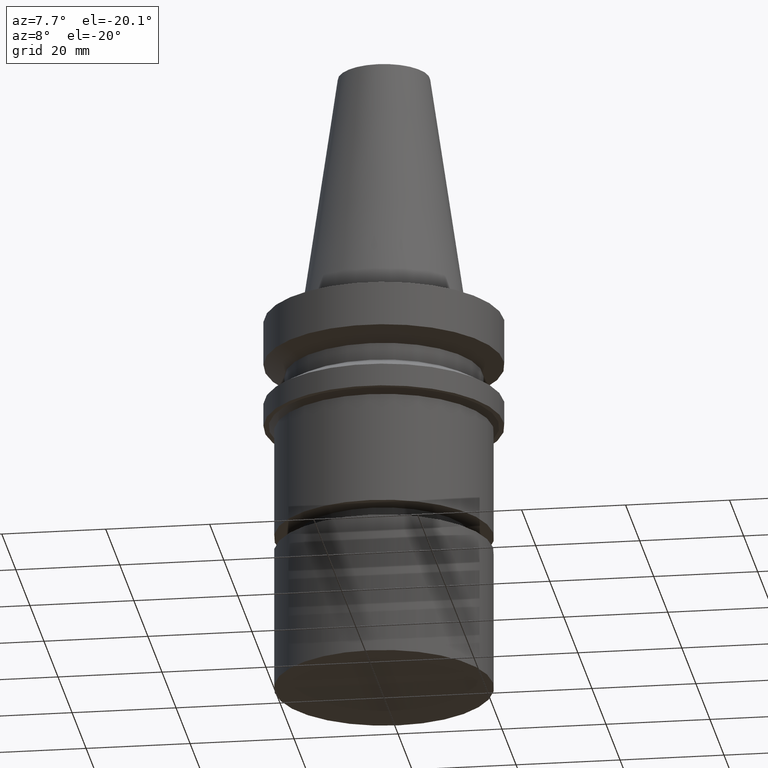
[diagram: clean part render]
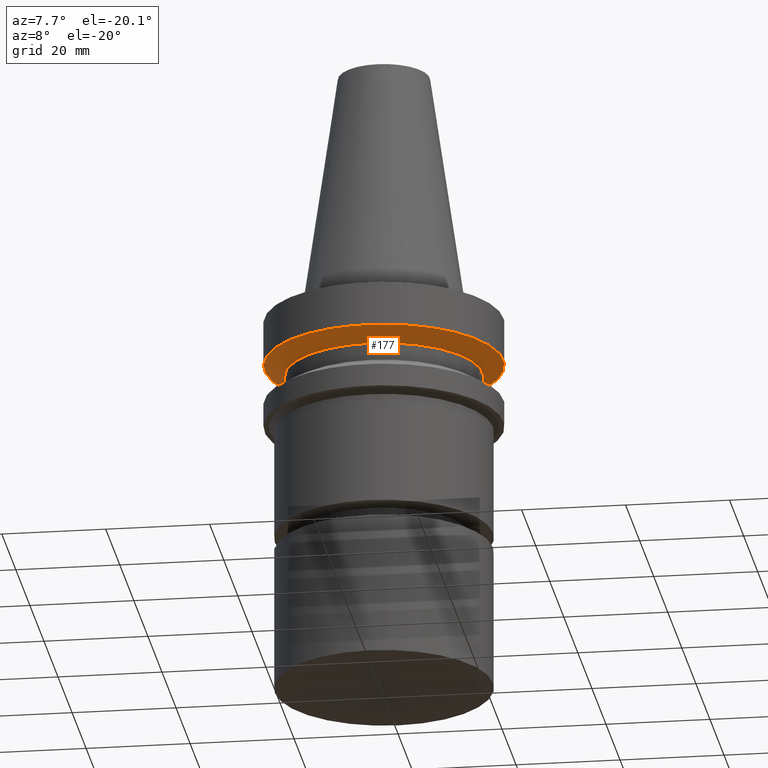
[diagram: same view with one face highlighted and labeled with its STEP entity id]
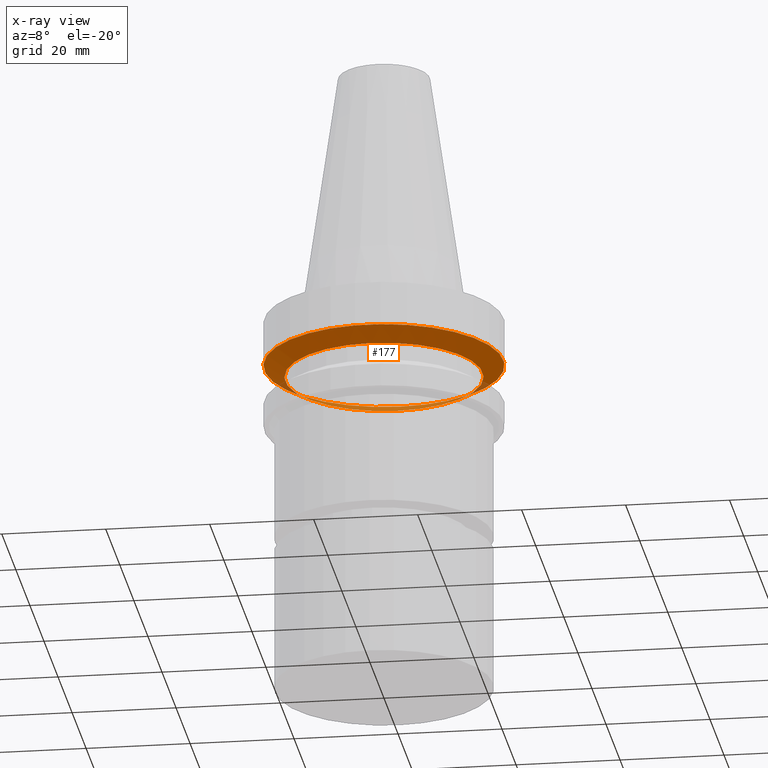
[diagram: x-ray of the same camera — body ghosted, the highlighted face saturated]
A machine part, auxiliary view. The second image highlights one B-rep face of the part: STEP entity #177.
The next image is the same camera in x-ray: the body ghosted, the highlighted face saturated — about 11% of this face is hidden behind the body in this view.
In plain terms, the highlighted conical surface has half-angle 60 deg.
Its self-contained STEP definition (entity closure, byte-faithful):
#152=EDGE_CURVE('Unnamed[1]',#322,#322,#323,.T.);
#165=EDGE_CURVE('Unnamed[1]',#341,#341,#342,.T.);
#177=ADVANCED_FACE('Unnamed[1]',(#357,#358),#359,.T.);
#322=VERTEX_POINT('',#526);
#323=CIRCLE('',#527,19.0);
#341=VERTEX_POINT('',#551);
#342=CIRCLE('',#552,23.0);
#357=FACE_BOUND('',#571,.T.);
#358=FACE_BOUND('',#572,.T.);
#359=CONICAL_SURFACE('',#573,21.0,1.04719755058881);
#526=CARTESIAN_POINT('',(7.29240495619202E-016,19.0,-11.90940108));
#527=AXIS2_PLACEMENT_3D('',#717,#718,#719);
#551=CARTESIAN_POINT('',(5.87830463590729E-016,23.0,-9.59999999999999));
#552=AXIS2_PLACEMENT_3D('',#737,#738,#739);
#571=EDGE_LOOP('',(#751));
#572=EDGE_LOOP('',(#752));
#573=AXIS2_PLACEMENT_3D('',#753,#754,#755);
#717=CARTESIAN_POINT('',(7.29240495619202E-016,1.4584809912384E-015,-11.90940108));
#718=DIRECTION('',(6.12323399573677E-017,1.22464679914735E-016,-1.0));
#719=DIRECTION('',(-1.23259516440783E-032,1.0,1.22464679914735E-016));
#737=CARTESIAN_POINT('',(5.87830463590729E-016,1.17566092718146E-015,-9.59999999999999));
#738=DIRECTION('',(6.12323399573677E-017,1.22464679914735E-016,-1.0));
#739=DIRECTION('',(-1.23259516440783E-032,1.0,1.22464679914735E-016));
#751=ORIENTED_EDGE('',*,*,#152,.F.);
#752=ORIENTED_EDGE('',*,*,#165,.T.);
#753=CARTESIAN_POINT('',(6.58535479604966E-016,1.31707095920993E-015,-10.75470054));
#754=DIRECTION('',(-6.12323399573677E-017,-1.22464679914735E-016,1.0));
#755=DIRECTION('',(-1.23259516440783E-032,1.0,1.22464679914735E-016));